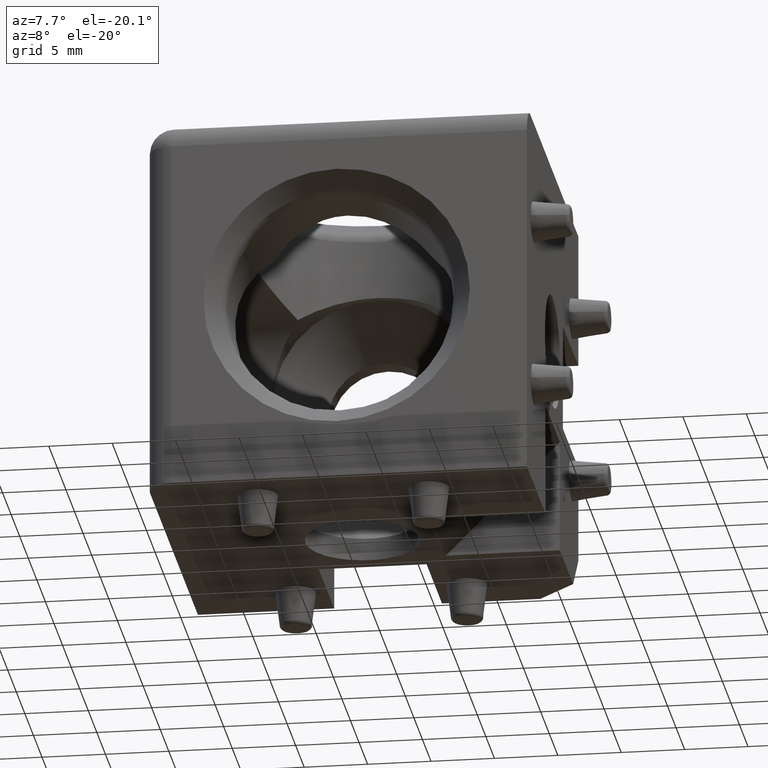
[diagram: clean part render]
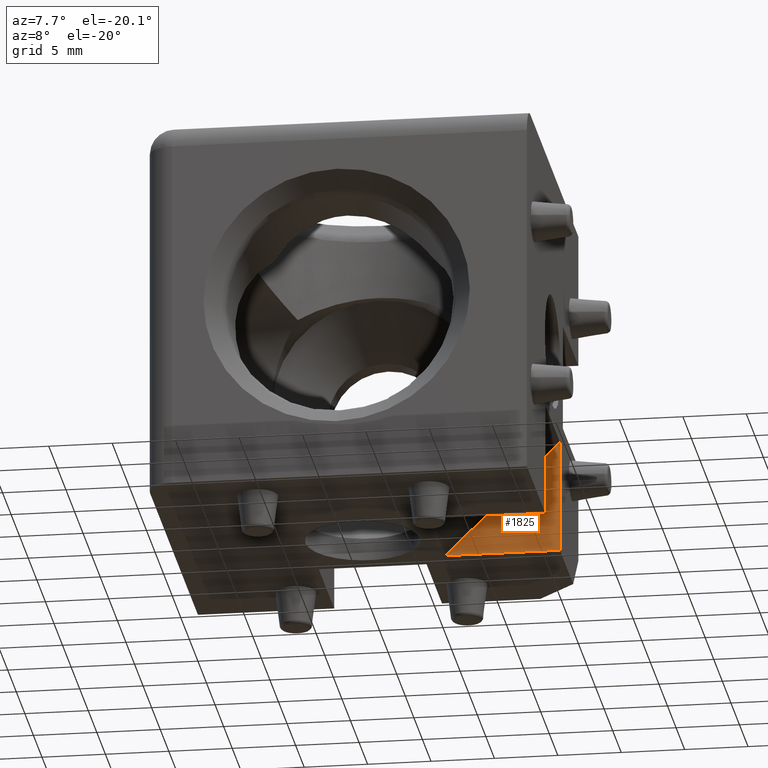
[diagram: same view with one face highlighted and labeled with its STEP entity id]
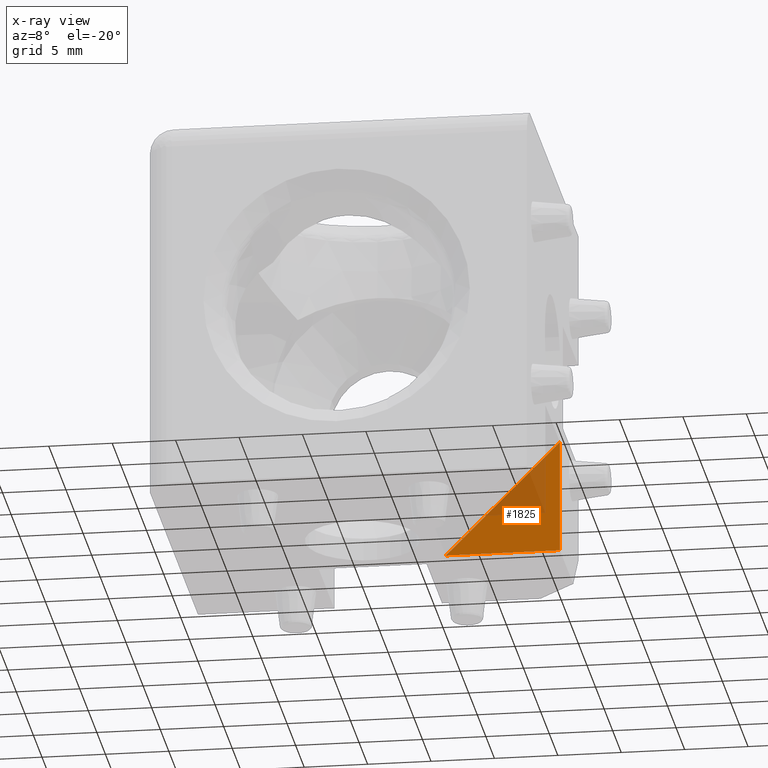
[diagram: x-ray of the same camera — body ghosted, the highlighted face saturated]
A machine part, auxiliary view. The second image highlights one B-rep face of the part: STEP entity #1825.
The next image is the same camera in x-ray: the body ghosted, the highlighted face saturated — about 27% of this face is hidden behind the body in this view.
In plain terms, the highlighted planar face has unit normal (0, -1, 0).
Its self-contained STEP definition (entity closure, byte-faithful):
#60=PLANE('',#2089);
#148=LINE('',#3288,#247);
#177=LINE('',#3357,#276);
#188=LINE('',#3587,#287);
#247=VECTOR('',#2448,9.);
#276=VECTOR('',#2507,9.);
#287=VECTOR('',#2702,12.7279220613579);
#445=FACE_OUTER_BOUND('',#579,.T.);
#579=EDGE_LOOP('',(#1656,#1657,#1658));
#860=VERTEX_POINT('',#3285);
#861=VERTEX_POINT('',#3287);
#886=VERTEX_POINT('',#3355);
#1065=EDGE_CURVE('',#860,#861,#148,.T.);
#1107=EDGE_CURVE('',#886,#860,#177,.T.);
#1155=EDGE_CURVE('',#861,#886,#188,.T.);
#1656=ORIENTED_EDGE('',*,*,#1107,.F.);
#1657=ORIENTED_EDGE('',*,*,#1155,.F.);
#1658=ORIENTED_EDGE('',*,*,#1065,.F.);
#1825=ADVANCED_FACE('',(#445),#60,.T.);
#2089=AXIS2_PLACEMENT_3D('',#3590,#2706,#2707);
#2448=DIRECTION('',(-1.,0.,0.));
#2507=DIRECTION('',(0.,0.,-1.));
#2702=DIRECTION('',(0.707106781186548,0.,0.707106781186548));
#2706=DIRECTION('center_axis',(0.,-1.,0.));
#2707=DIRECTION('ref_axis',(0.,0.,-1.));
#3285=CARTESIAN_POINT('',(15.,4.25,-15.));
#3287=CARTESIAN_POINT('',(6.,4.25,-15.));
#3288=CARTESIAN_POINT('',(15.,4.25,-15.));
#3355=CARTESIAN_POINT('',(15.,4.25,-6.));
#3357=CARTESIAN_POINT('',(15.,4.25,-15.));
#3587=CARTESIAN_POINT('',(6.,4.25,-15.));
#3590=CARTESIAN_POINT('Origin',(15.,4.25,-15.));